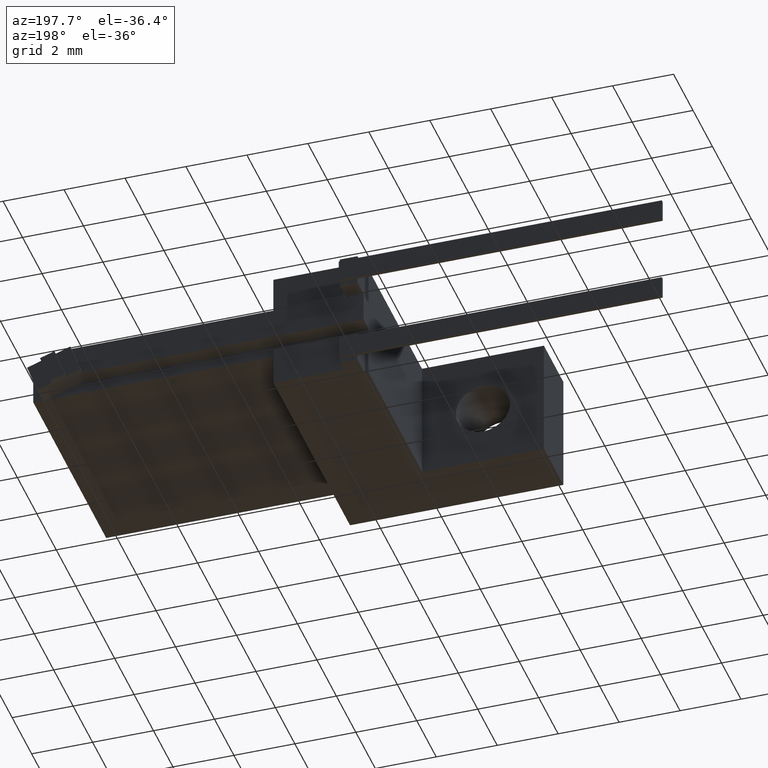
[diagram: clean part render]
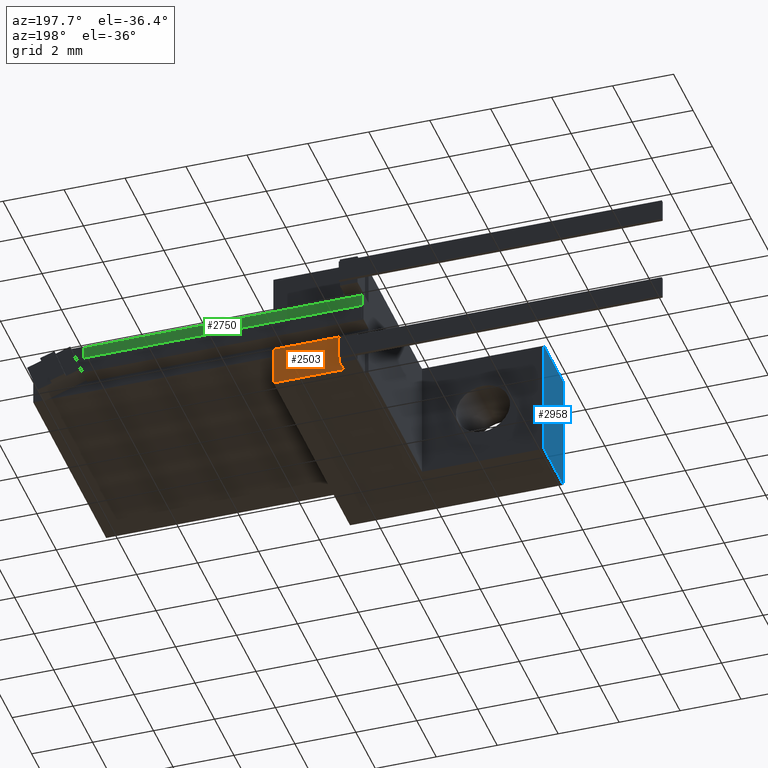
[diagram: same view with three faces highlighted in distinct colors, each labeled with its STEP entity id]
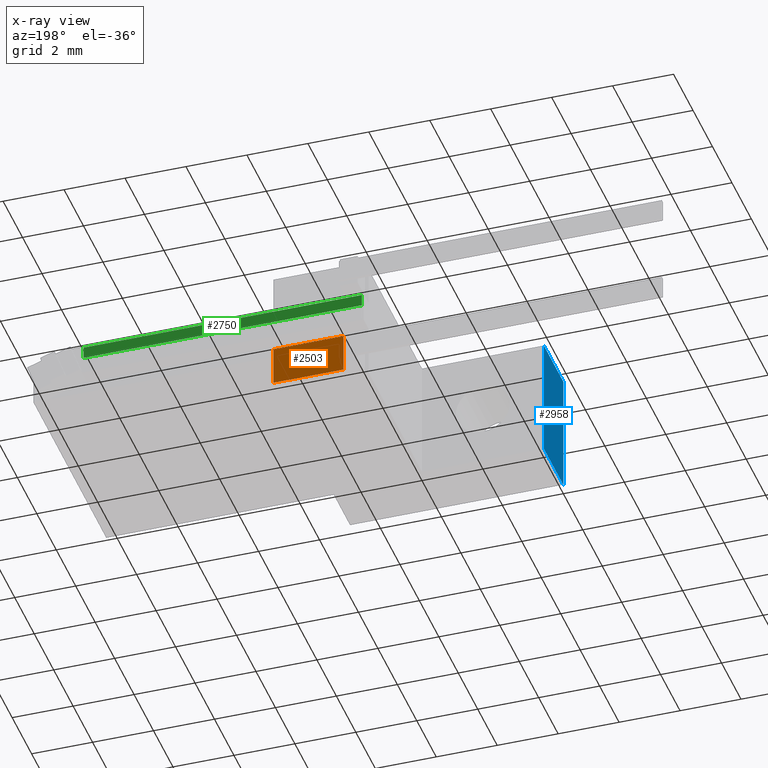
[diagram: x-ray of the same camera — body ghosted, the three highlighted faces saturated]
A machine part, auxiliary view with three faces highlighted in distinct colors.
The next image is the same camera in x-ray (body ghosted, the three faces saturated) — at least one of them is partly hidden behind the body in this view.
Their STEP definitions:

[orange] entity #2503 — the highlighted planar face has unit normal (0, -1, 0).
#201 = LINE ( 'NONE', #222, #221 ) ;
#221 = VECTOR ( 'NONE', #227, 1000.000000000000000 ) ;
#222 = CARTESIAN_POINT ( 'NONE',  ( 6.999999999999997300, 7.874999999999998200, 0.0000000000000000000 ) ) ;
#227 = DIRECTION ( 'NONE',  ( 0.0000000000000000000, 0.0000000000000000000, 1.000000000000000000 ) ) ;
#268 = CARTESIAN_POINT ( 'NONE',  ( 6.999999999999999100, 7.874999999999998200, 1.300000000000000000 ) ) ;
#289 = DIRECTION ( 'NONE',  ( -1.000000000000000000, -1.156482317317871700E-016, 0.0000000000000000000 ) ) ;
#290 = VECTOR ( 'NONE', #289, 1000.000000000000000 ) ;
#291 = CARTESIAN_POINT ( 'NONE',  ( 6.999999999999997300, 7.874999999999998200, 0.0000000000000000000 ) ) ;
#292 = CARTESIAN_POINT ( 'NONE',  ( 14.99999999999999800, 7.875000000000000000, 0.0000000000000000000 ) ) ;
#293 = LINE ( 'NONE', #292, #290 ) ;
#2503 = ADVANCED_FACE ( 'NONE', ( #3238 ), #3244, .F. ) ;
#2504 = EDGE_LOOP ( 'NONE', ( #2505, #2509, #2827, #2830 ) ) ;
#2505 = ORIENTED_EDGE ( 'NONE', *, *, #2506, .F. ) ;
#2506 = EDGE_CURVE ( 'NONE', #2507, #2508, #3252, .T. ) ;
#2507 = VERTEX_POINT ( 'NONE', #3268 ) ;
#2508 = VERTEX_POINT ( 'NONE', #3267 ) ;
#2509 = ORIENTED_EDGE ( 'NONE', *, *, #2510, .F. ) ;
#2510 = EDGE_CURVE ( 'NONE', #2826, #2507, #3266, .T. ) ;
#2826 = VERTEX_POINT ( 'NONE', #268 ) ;
#2827 = ORIENTED_EDGE ( 'NONE', *, *, #2828, .F. ) ;
#2828 = EDGE_CURVE ( 'NONE', #2829, #2826, #201, .T. ) ;
#2829 = VERTEX_POINT ( 'NONE', #291 ) ;
#2830 = ORIENTED_EDGE ( 'NONE', *, *, #2831, .T. ) ;
#2831 = EDGE_CURVE ( 'NONE', #2829, #2508, #293, .T. ) ;
#3238 = FACE_OUTER_BOUND ( 'NONE', #2504, .T. ) ;
#3244 = PLANE ( 'NONE',  #3247 ) ;
#3245 = DIRECTION ( 'NONE',  ( 1.156482317317872000E-016, -1.000000000000000000, 0.0000000000000000000 ) ) ;
#3246 = CARTESIAN_POINT ( 'NONE',  ( 14.99999999999999800, 7.875000000000000000, 4.000000000000000000 ) ) ;
#3247 = AXIS2_PLACEMENT_3D ( 'NONE', #3246, #3245, #3254 ) ;
#3249 = DIRECTION ( 'NONE',  ( -0.0000000000000000000, -0.0000000000000000000, -1.000000000000000000 ) ) ;
#3250 = VECTOR ( 'NONE', #3249, 1000.000000000000000 ) ;
#3251 = CARTESIAN_POINT ( 'NONE',  ( 4.699999999999995700, 7.874999999999998200, -8.809142651444723500E-017 ) ) ;
#3252 = LINE ( 'NONE', #3251, #3250 ) ;
#3254 = DIRECTION ( 'NONE',  ( 1.000000000000000000, 1.156482317317872000E-016, 0.0000000000000000000 ) ) ;
#3263 = DIRECTION ( 'NONE',  ( -1.000000000000000000, -1.577021341797097600E-016, 0.0000000000000000000 ) ) ;
#3264 = VECTOR ( 'NONE', #3263, 1000.000000000000000 ) ;
#3265 = CARTESIAN_POINT ( 'NONE',  ( 14.99999999999999800, 7.875000000000000000, 1.300000000000000000 ) ) ;
#3266 = LINE ( 'NONE', #3265, #3264 ) ;
#3267 = CARTESIAN_POINT ( 'NONE',  ( 4.699999999999995700, 7.874999999999998200, -8.809142651444723500E-017 ) ) ;
#3268 = CARTESIAN_POINT ( 'NONE',  ( 4.699999999999995700, 7.874999999999998200, 1.300000000000000000 ) ) ;

[blue] entity #2958 — the highlighted planar face has unit normal (1, -0, 0).
#366 = CARTESIAN_POINT ( 'NONE',  ( 0.0000000000000000000, 0.0000000000000000000, 4.000000000000000000 ) ) ;
#369 = LINE ( 'NONE', #370, #404 ) ;
#370 = CARTESIAN_POINT ( 'NONE',  ( 1.530615005468122400E-017, 7.874999999999998200, 4.000000000000000000 ) ) ;
#374 = CARTESIAN_POINT ( 'NONE',  ( 0.0000000000000000000, 0.0000000000000000000, 0.0000000000000000000 ) ) ;
#375 = DIRECTION ( 'NONE',  ( -1.943819609241857300E-018, -1.000000000000000000, 0.0000000000000000000 ) ) ;
#376 = VECTOR ( 'NONE', #375, 1000.000000000000000 ) ;
#377 = CARTESIAN_POINT ( 'NONE',  ( 1.530615005468122400E-017, 7.874999999999998200, 0.0000000000000000000 ) ) ;
#378 = LINE ( 'NONE', #377, #376 ) ;
#383 = CARTESIAN_POINT ( 'NONE',  ( 0.0000000000000000000, 0.0000000000000000000, 4.000000000000000000 ) ) ;
#384 = LINE ( 'NONE', #383, #403 ) ;
#402 = DIRECTION ( 'NONE',  ( -0.0000000000000000000, -0.0000000000000000000, -1.000000000000000000 ) ) ;
#403 = VECTOR ( 'NONE', #402, 1000.000000000000000 ) ;
#404 = VECTOR ( 'NONE', #408, 1000.000000000000000 ) ;
#408 = DIRECTION ( 'NONE',  ( -1.943819609241857300E-018, -1.000000000000000000, 0.0000000000000000000 ) ) ;
#441 = VECTOR ( 'NONE', #448, 1000.000000000000000 ) ;
#442 = CARTESIAN_POINT ( 'NONE',  ( -9.107324718657838900E-016, 1.999999999999998200, 0.0000000000000000000 ) ) ;
#443 = LINE ( 'NONE', #442, #441 ) ;
#446 = CARTESIAN_POINT ( 'NONE',  ( -9.107324718657838900E-016, 1.999999999999998200, 3.999999999999946300 ) ) ;
#447 = CARTESIAN_POINT ( 'NONE',  ( -9.107324718657838900E-016, 1.999999999999998200, 0.0000000000000000000 ) ) ;
#448 = DIRECTION ( 'NONE',  ( 0.0000000000000000000, 0.0000000000000000000, 1.000000000000000000 ) ) ;
#472 = FACE_OUTER_BOUND ( 'NONE', #2951, .T. ) ;
#504 = PLANE ( 'NONE',  #506 ) ;
#505 = CARTESIAN_POINT ( 'NONE',  ( 1.530615005468122400E-017, 7.874999999999998200, 4.000000000000000000 ) ) ;
#506 = AXIS2_PLACEMENT_3D ( 'NONE', #505, #509, #508 ) ;
#508 = DIRECTION ( 'NONE',  ( 1.943819609241857300E-018, 1.000000000000000000, 0.0000000000000000000 ) ) ;
#509 = DIRECTION ( 'NONE',  ( 1.000000000000000000, -1.943819609241857300E-018, 0.0000000000000000000 ) ) ;
#2595 = VERTEX_POINT ( 'NONE', #366 ) ;
#2603 = EDGE_CURVE ( 'NONE', #2935, #2595, #369, .T. ) ;
#2612 = ORIENTED_EDGE ( 'NONE', *, *, #2603, .F. ) ;
#2613 = EDGE_CURVE ( 'NONE', #2595, #2625, #384, .T. ) ;
#2623 = ORIENTED_EDGE ( 'NONE', *, *, #2613, .F. ) ;
#2624 = EDGE_CURVE ( 'NONE', #2934, #2625, #378, .T. ) ;
#2625 = VERTEX_POINT ( 'NONE', #374 ) ;
#2629 = ORIENTED_EDGE ( 'NONE', *, *, #2624, .T. ) ;
#2932 = ORIENTED_EDGE ( 'NONE', *, *, #2933, .F. ) ;
#2933 = EDGE_CURVE ( 'NONE', #2934, #2935, #443, .T. ) ;
#2934 = VERTEX_POINT ( 'NONE', #447 ) ;
#2935 = VERTEX_POINT ( 'NONE', #446 ) ;
#2951 = EDGE_LOOP ( 'NONE', ( #2932, #2629, #2623, #2612 ) ) ;
#2958 = ADVANCED_FACE ( 'NONE', ( #472 ), #504, .F. ) ;

[green] entity #2750 — the highlighted planar face has unit normal (0, -1, 0).
#796 = CARTESIAN_POINT ( 'NONE',  ( 0.04999999999999969700, 0.5085000000000002900, 0.5500000000000001600 ) ) ;
#905 = DIRECTION ( 'NONE',  ( 0.0000000000000000000, 0.0000000000000000000, -1.000000000000000000 ) ) ;
#906 = DIRECTION ( 'NONE',  ( 0.0000000000000000000, -1.000000000000000000, -0.0000000000000000000 ) ) ;
#909 = CARTESIAN_POINT ( 'NONE',  ( 0.04999999999999969700, 0.5085000000000002900, 0.9499999999999998400 ) ) ;
#910 = AXIS2_PLACEMENT_3D ( 'NONE', #909, #906, #905 ) ;
#911 = PLANE ( 'NONE',  #910 ) ;
#914 = FACE_OUTER_BOUND ( 'NONE', #2751, .T. ) ;
#943 = LINE ( 'NONE', #948, #947 ) ;
#947 = VECTOR ( 'NONE', #949, 1000.000000000000000 ) ;
#948 = CARTESIAN_POINT ( 'NONE',  ( 0.04999999999999969700, 0.5085000000000002900, 0.9499999999999998400 ) ) ;
#949 = DIRECTION ( 'NONE',  ( -0.0000000000000000000, -0.0000000000000000000, 1.000000000000000000 ) ) ;
#952 = CARTESIAN_POINT ( 'NONE',  ( 9.182000000000000400, 0.5085000000000002900, 0.9499999999999998400 ) ) ;
#955 = DIRECTION ( 'NONE',  ( 1.000000000000000000, -0.0000000000000000000, -0.0000000000000000000 ) ) ;
#956 = VECTOR ( 'NONE', #955, 1000.000000000000000 ) ;
#958 = LINE ( 'NONE', #952, #956 ) ;
#984 = CARTESIAN_POINT ( 'NONE',  ( 0.04999999999999969700, 0.5085000000000002900, 0.9499999999999998400 ) ) ;
#992 = CARTESIAN_POINT ( 'NONE',  ( 9.182000000000000400, 0.5085000000000002900, 0.9499999999999998400 ) ) ;
#999 = LINE ( 'NONE', #1000, #1027 ) ;
#1000 = CARTESIAN_POINT ( 'NONE',  ( 9.182000000000000400, 0.5085000000000002900, 0.9499999999999998400 ) ) ;
#1027 = VECTOR ( 'NONE', #1029, 1000.000000000000000 ) ;
#1029 = DIRECTION ( 'NONE',  ( 0.0000000000000000000, 0.0000000000000000000, -1.000000000000000000 ) ) ;
#1035 = CARTESIAN_POINT ( 'NONE',  ( 9.182000000000000400, 0.5085000000000002900, 0.5500000000000001600 ) ) ;
#1741 = DIRECTION ( 'NONE',  ( -1.000000000000000000, 0.0000000000000000000, -1.187255992647289000E-017 ) ) ;
#1742 = CARTESIAN_POINT ( 'NONE',  ( 9.182000000000000400, 0.5085000000000002900, 0.5500000000000001600 ) ) ;
#1743 = LINE ( 'NONE', #1742, #1755 ) ;
#1755 = VECTOR ( 'NONE', #1741, 1000.000000000000000 ) ;
#2655 = EDGE_CURVE ( 'NONE', #2767, #2710, #1743, .T. ) ;
#2662 = EDGE_CURVE ( 'NONE', #2710, #2757, #943, .T. ) ;
#2710 = VERTEX_POINT ( 'NONE', #796 ) ;
#2725 = ORIENTED_EDGE ( 'NONE', *, *, #2755, .T. ) ;
#2726 = ORIENTED_EDGE ( 'NONE', *, *, #2769, .T. ) ;
#2727 = ORIENTED_EDGE ( 'NONE', *, *, #2655, .T. ) ;
#2728 = ORIENTED_EDGE ( 'NONE', *, *, #2662, .T. ) ;
#2750 = ADVANCED_FACE ( 'NONE', ( #914 ), #911, .F. ) ;
#2751 = EDGE_LOOP ( 'NONE', ( #2725, #2726, #2727, #2728 ) ) ;
#2755 = EDGE_CURVE ( 'NONE', #2757, #2778, #958, .T. ) ;
#2757 = VERTEX_POINT ( 'NONE', #984 ) ;
#2767 = VERTEX_POINT ( 'NONE', #1035 ) ;
#2769 = EDGE_CURVE ( 'NONE', #2778, #2767, #999, .T. ) ;
#2778 = VERTEX_POINT ( 'NONE', #992 ) ;